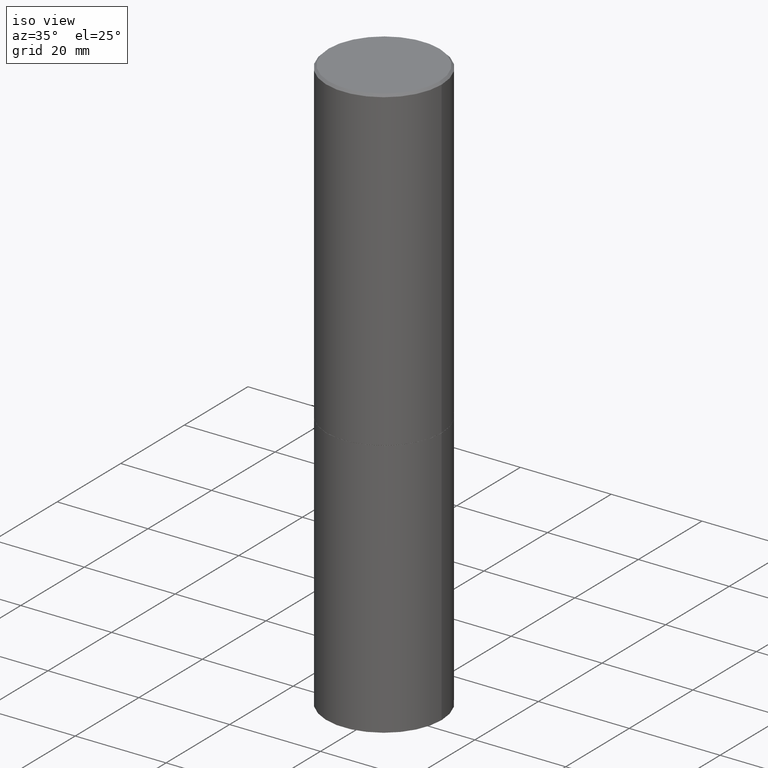
[diagram: clean part render]
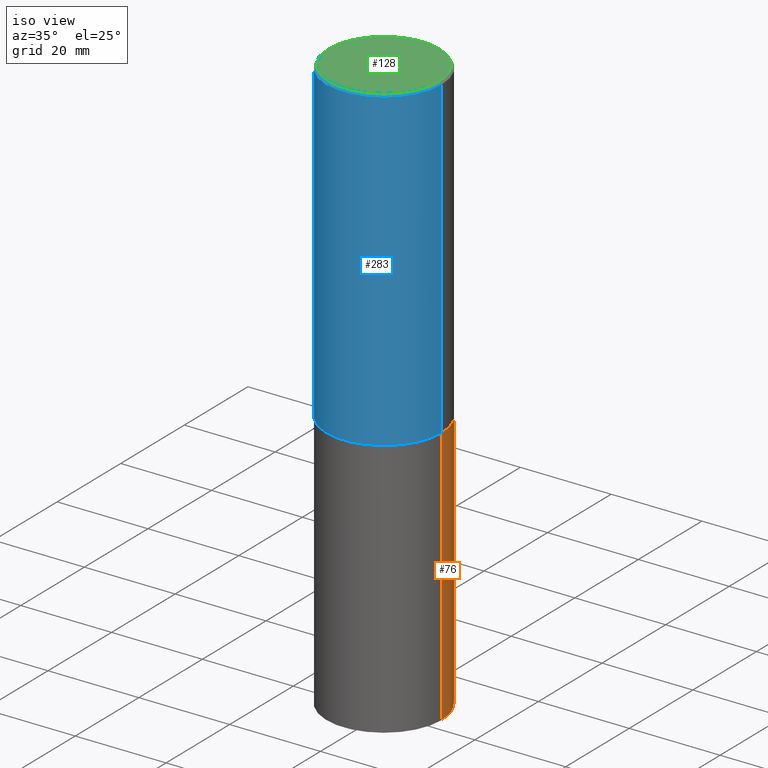
[diagram: same view with three faces highlighted in distinct colors, each labeled with its STEP entity id]
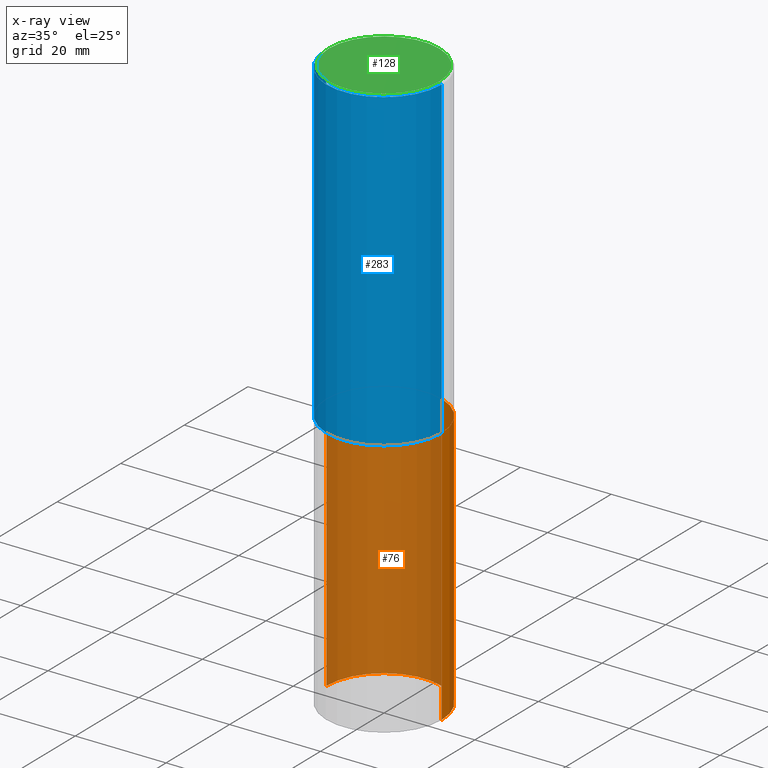
[diagram: x-ray of the same camera — body ghosted, the three highlighted faces saturated]
A machine part, iso view with three faces highlighted in distinct colors.
The next image is the same camera in x-ray (body ghosted, the three faces saturated) — at least one of them is partly hidden behind the body in this view.
Their STEP definitions:

[orange] entity #76 — the highlighted cylindrical surface (partial cylindrical patch) has radius 12.7 mm, axis along (-0, 0, 1).
#14 = AXIS2_PLACEMENT_3D ( 'NONE', #346, #198, #59 ) ;
#19 = DIRECTION ( 'NONE',  ( -2.445468806185136877E-29, 3.491481338843145188E-15, 1.000000000000000000 ) ) ;
#24 = LINE ( 'NONE', #138, #142 ) ;
#25 = VERTEX_POINT ( 'NONE', #66 ) ;
#49 = CARTESIAN_POINT ( 'NONE',  ( 0.5000000000000000000, -3.491481338843133355E-15, 2.438088387897967896E-29 ) ) ;
#53 = ORIENTED_EDGE ( 'NONE', *, *, #229, .F. ) ;
#59 = DIRECTION ( 'NONE',  ( 1.000000000000000000, -6.982962677686266711E-15, 4.876176775795935793E-29 ) ) ;
#66 = CARTESIAN_POINT ( 'NONE',  ( 0.5000000000000000000, -2.094888803305886324E-14, -5.000000000000000000 ) ) ;
#76 = ADVANCED_FACE ( 'NONE', ( #86 ), #111, .T. ) ;
#82 = LINE ( 'NONE', #49, #271 ) ;
#86 = FACE_OUTER_BOUND ( 'NONE', #247, .T. ) ;
#104 = ORIENTED_EDGE ( 'NONE', *, *, #140, .T. ) ;
#111 = CYLINDRICAL_SURFACE ( 'NONE', #14, 0.5000000000000000000 ) ;
#138 = CARTESIAN_POINT ( 'NONE',  ( -0.5000000000000000000, 3.552713678800500929E-15, -2.459467545127452891E-29 ) ) ;
#140 = EDGE_CURVE ( 'NONE', #222, #313, #24, .T. ) ;
#142 = VECTOR ( 'NONE', #261, 39.37007874015748143 ) ;
#153 = AXIS2_PLACEMENT_3D ( 'NONE', #319, #171, #292 ) ;
#157 = EDGE_CURVE ( 'NONE', #25, #222, #265, .T. ) ;
#165 = CARTESIAN_POINT ( 'NONE',  ( -0.5000000000000000000, -9.976776509216688154E-15, -2.750000000000000000 ) ) ;
#171 = DIRECTION ( 'NONE',  ( -2.445468806185136597E-29, 3.491481338843145583E-15, 1.000000000000000000 ) ) ;
#181 = EDGE_CURVE ( 'NONE', #212, #313, #227, .T. ) ;
#198 = DIRECTION ( 'NONE',  ( -2.445468806185136597E-29, 3.491481338843145583E-15, 1.000000000000000000 ) ) ;
#204 = DIRECTION ( 'NONE',  ( -2.445468806185136597E-29, 3.491481338843145583E-15, 1.000000000000000000 ) ) ;
#212 = VERTEX_POINT ( 'NONE', #254 ) ;
#222 = VERTEX_POINT ( 'NONE', #226 ) ;
#226 = CARTESIAN_POINT ( 'NONE',  ( -0.5000000000000000000, -9.976776509216688154E-15, -5.000000000000000000 ) ) ;
#227 = CIRCLE ( 'NONE', #258, 0.5000000000000000000 ) ;
#229 = EDGE_CURVE ( 'NONE', #25, #212, #82, .T. ) ;
#247 = EDGE_LOOP ( 'NONE', ( #349, #104, #330, #53 ) ) ;
#254 = CARTESIAN_POINT ( 'NONE',  ( 0.5000000000000000000, -1.309305502066178321E-14, -2.750000000000000000 ) ) ;
#258 = AXIS2_PLACEMENT_3D ( 'NONE', #322, #204, #352 ) ;
#261 = DIRECTION ( 'NONE',  ( -2.445468806185136877E-29, 3.491481338843145188E-15, 1.000000000000000000 ) ) ;
#265 = CIRCLE ( 'NONE', #153, 0.5000000000000000000 ) ;
#271 = VECTOR ( 'NONE', #19, 39.37007874015748143 ) ;
#292 = DIRECTION ( 'NONE',  ( 1.000000000000000000, -6.982962677686266711E-15, 0.000000000000000000 ) ) ;
#313 = VERTEX_POINT ( 'NONE', #165 ) ;
#319 = CARTESIAN_POINT ( 'NONE',  ( 1.222734403092568523E-28, -1.745740669421572989E-14, -5.000000000000000000 ) ) ;
#322 = CARTESIAN_POINT ( 'NONE',  ( 6.725039217009124520E-29, -9.601573681818649859E-15, -2.750000000000000000 ) ) ;
#330 = ORIENTED_EDGE ( 'NONE', *, *, #181, .F. ) ;
#346 = CARTESIAN_POINT ( 'NONE',  ( 0.000000000000000000, 0.000000000000000000, 0.000000000000000000 ) ) ;
#349 = ORIENTED_EDGE ( 'NONE', *, *, #157, .T. ) ;
#352 = DIRECTION ( 'NONE',  ( 1.000000000000000000, -6.982962677686266711E-15, 0.000000000000000000 ) ) ;

[blue] entity #283 — the highlighted cylindrical surface (partial cylindrical patch) has radius 12.7 mm, axis along (-0, 0, 1).
#21 = ORIENTED_EDGE ( 'NONE', *, *, #33, .T. ) ;
#33 = EDGE_CURVE ( 'NONE', #211, #43, #38, .T. ) ;
#38 = LINE ( 'NONE', #267, #166 ) ;
#43 = VERTEX_POINT ( 'NONE', #301 ) ;
#51 = CARTESIAN_POINT ( 'NONE',  ( -0.5000000000000000000, -1.281242234827833554E-15, -2.749000000000000110 ) ) ;
#52 = CARTESIAN_POINT ( 'NONE',  ( 0.000000000000000000, 0.000000000000000000, 0.000000000000000000 ) ) ;
#57 = AXIS2_PLACEMENT_3D ( 'NONE', #237, #300, #356 ) ;
#63 = CARTESIAN_POINT ( 'NONE',  ( 0.5000000000000000000, -1.308956353932294179E-14, -2.749000000000000110 ) ) ;
#67 = VECTOR ( 'NONE', #348, 39.37007874015748143 ) ;
#80 = DIRECTION ( 'NONE',  ( -2.445468806185136597E-29, 3.491481338843145583E-15, 1.000000000000000000 ) ) ;
#84 = AXIS2_PLACEMENT_3D ( 'NONE', #189, #80, #245 ) ;
#112 = EDGE_CURVE ( 'NONE', #275, #211, #221, .T. ) ;
#114 = LINE ( 'NONE', #117, #67 ) ;
#117 = CARTESIAN_POINT ( 'NONE',  ( -0.4999999999999998335, 3.552713678800499746E-15, -2.459467545127452330E-29 ) ) ;
#133 = ORIENTED_EDGE ( 'NONE', *, *, #234, .F. ) ;
#152 = VERTEX_POINT ( 'NONE', #321 ) ;
#159 = DIRECTION ( 'NONE',  ( 1.000000000000000000, -6.982962677686267499E-15, 4.876176775795936353E-29 ) ) ;
#162 = DIRECTION ( 'NONE',  ( -2.445468806185136597E-29, 3.491481338843145583E-15, 1.000000000000000000 ) ) ;
#166 = VECTOR ( 'NONE', #178, 39.37007874015748143 ) ;
#178 = DIRECTION ( 'NONE',  ( -2.445468806185136877E-29, 3.491481338843145188E-15, 1.000000000000000000 ) ) ;
#188 = CYLINDRICAL_SURFACE ( 'NONE', #311, 0.4999999999999998335 ) ;
#189 = CARTESIAN_POINT ( 'NONE',  ( 4.890937612370297681E-31, -6.982962677686324889E-17, -0.02000000000000009756 ) ) ;
#211 = VERTEX_POINT ( 'NONE', #63 ) ;
#221 = CIRCLE ( 'NONE', #57, 0.5000000000000000000 ) ;
#234 = EDGE_CURVE ( 'NONE', #152, #43, #248, .T. ) ;
#237 = CARTESIAN_POINT ( 'NONE',  ( 6.722593748202941159E-29, -9.598082200479808430E-15, -2.749000000000000110 ) ) ;
#245 = DIRECTION ( 'NONE',  ( 1.000000000000000000, -6.982962677686266711E-15, 0.000000000000000000 ) ) ;
#248 = CIRCLE ( 'NONE', #84, 0.4999999999999996669 ) ;
#253 = ORIENTED_EDGE ( 'NONE', *, *, #316, .F. ) ;
#267 = CARTESIAN_POINT ( 'NONE',  ( 0.4999999999999998335, -3.491481338843132566E-15, 2.438088387897967336E-29 ) ) ;
#275 = VERTEX_POINT ( 'NONE', #51 ) ;
#283 = ADVANCED_FACE ( 'NONE', ( #338 ), #188, .T. ) ;
#300 = DIRECTION ( 'NONE',  ( -2.445468806185136597E-29, 3.491481338843145583E-15, 1.000000000000000000 ) ) ;
#301 = CARTESIAN_POINT ( 'NONE',  ( 0.4999999999999996669, -3.500078625662626713E-15, -0.02000000000000009756 ) ) ;
#311 = AXIS2_PLACEMENT_3D ( 'NONE', #52, #162, #159 ) ;
#316 = EDGE_CURVE ( 'NONE', #275, #152, #114, .T. ) ;
#321 = CARTESIAN_POINT ( 'NONE',  ( -0.4999999999999996669, 3.421651712066267691E-15, -0.02000000000000009756 ) ) ;
#338 = FACE_OUTER_BOUND ( 'NONE', #363, .T. ) ;
#348 = DIRECTION ( 'NONE',  ( -2.445468806185136877E-29, 3.491481338843145188E-15, 1.000000000000000000 ) ) ;
#356 = DIRECTION ( 'NONE',  ( 1.000000000000000000, -6.982962677686266711E-15, 0.000000000000000000 ) ) ;
#359 = ORIENTED_EDGE ( 'NONE', *, *, #112, .T. ) ;
#363 = EDGE_LOOP ( 'NONE', ( #253, #359, #21, #133 ) ) ;

[green] entity #128 — the highlighted planar face has unit normal (0, -0, -1).
#7 = CIRCLE ( 'NONE', #327, 0.4799999999999996492 ) ;
#8 = CARTESIAN_POINT ( 'NONE',  ( -5.219257071676098903E-46, 7.451715851902235727E-32, 2.134256245050205639E-17 ) ) ;
#18 = VERTEX_POINT ( 'NONE', #324 ) ;
#29 = DIRECTION ( 'NONE',  ( 1.000000000000000000, -6.982962677686267499E-15, 4.876431871984417079E-29 ) ) ;
#61 = EDGE_CURVE ( 'NONE', #18, #218, #185, .T. ) ;
#69 = ORIENTED_EDGE ( 'NONE', *, *, #109, .T. ) ;
#74 = DIRECTION ( 'NONE',  ( 2.438088387897960049E-29, -3.491481338843145188E-15, -1.000000000000000000 ) ) ;
#93 = AXIS2_PLACEMENT_3D ( 'NONE', #98, #74, #183 ) ;
#98 = CARTESIAN_POINT ( 'NONE',  ( 3.351822085289405181E-15, 0.4799999999999996492, -1.665239761419457638E-15 ) ) ;
#109 = EDGE_CURVE ( 'NONE', #218, #18, #7, .T. ) ;
#120 = DIRECTION ( 'NONE',  ( 1.000000000000000000, -6.982962677686267499E-15, 4.876431871984417079E-29 ) ) ;
#122 = FACE_OUTER_BOUND ( 'NONE', #224, .T. ) ;
#128 = ADVANCED_FACE ( 'NONE', ( #122 ), #213, .F. ) ;
#183 = DIRECTION ( 'NONE',  ( -1.000000000000000000, 6.982962677686265922E-15, -4.876176775795935793E-29 ) ) ;
#185 = CIRCLE ( 'NONE', #281, 0.4799999999999996492 ) ;
#197 = CARTESIAN_POINT ( 'NONE',  ( 0.4799999999999996492, -3.396558832296479732E-15, 2.134256245052565135E-17 ) ) ;
#202 = DIRECTION ( 'NONE',  ( -2.445468806185136597E-29, 3.491481338843145583E-15, 1.000000000000000000 ) ) ;
#207 = DIRECTION ( 'NONE',  ( -2.445468806185136597E-29, 3.491481338843145583E-15, 1.000000000000000000 ) ) ;
#213 = PLANE ( 'NONE',  #93 ) ;
#218 = VERTEX_POINT ( 'NONE', #197 ) ;
#224 = EDGE_LOOP ( 'NONE', ( #310, #69 ) ) ;
#256 = CARTESIAN_POINT ( 'NONE',  ( -5.219257071676098903E-46, 7.451715851902235727E-32, 2.134256245050205639E-17 ) ) ;
#281 = AXIS2_PLACEMENT_3D ( 'NONE', #256, #202, #29 ) ;
#310 = ORIENTED_EDGE ( 'NONE', *, *, #61, .T. ) ;
#324 = CARTESIAN_POINT ( 'NONE',  ( -0.4799999999999996492, 3.386736898677836436E-15, 2.134256245047849534E-17 ) ) ;
#327 = AXIS2_PLACEMENT_3D ( 'NONE', #8, #207, #120 ) ;